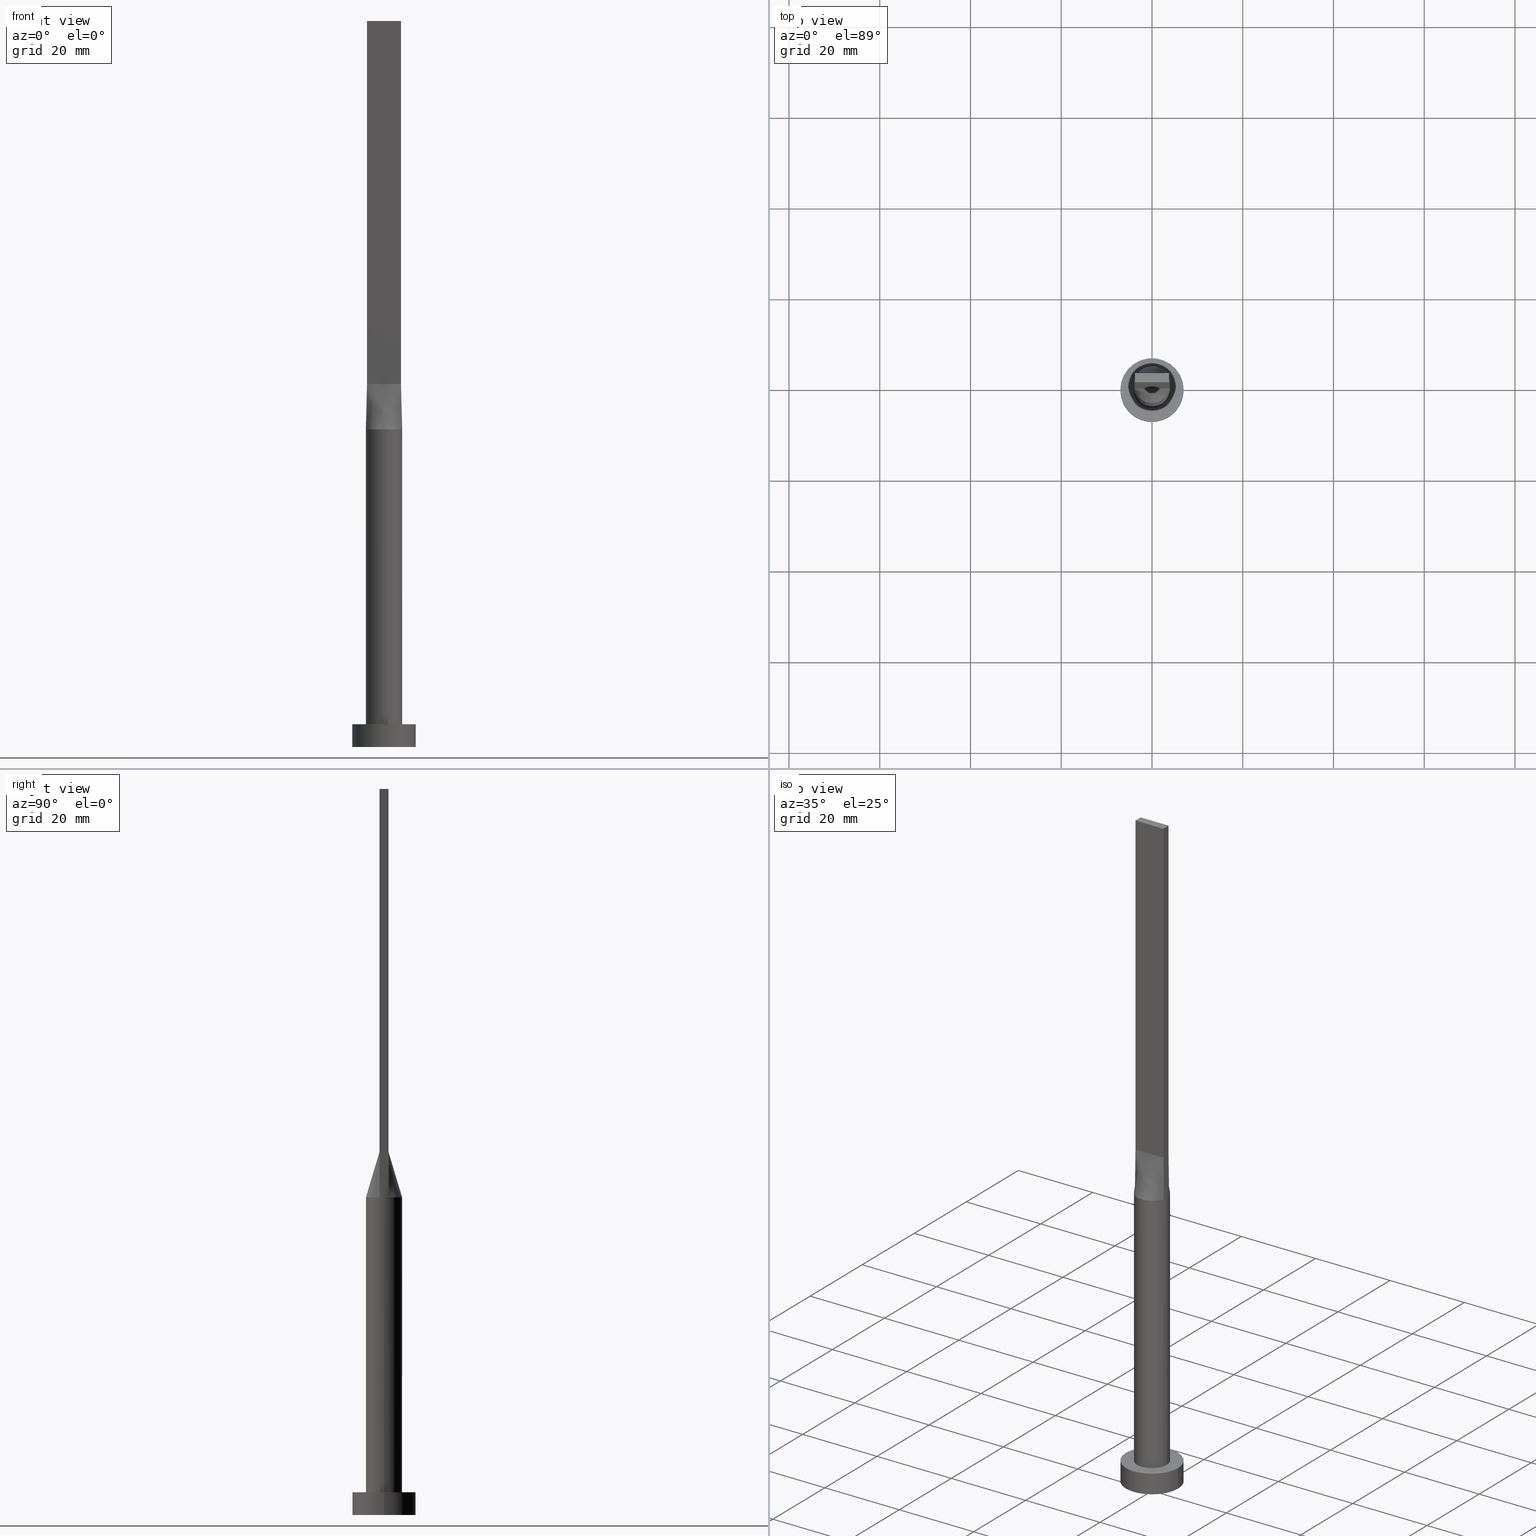
[diagram: canonical four-view strip — front | top / right | iso, engineering-drawing reading convention]
A machine part, canonical four-view strip (front | top / right | iso — engineering-drawing reading convention). The complete STEP part file that produces these views, byte-faithful:
ISO-10303-21;
HEADER;
FILE_DESCRIPTION (( 'STEP AP203' ),
    '1' );
FILE_NAME ('753e.STEP',
    '2023-02-13T09:54:30',
    ( '' ),
    ( '' ),
    'SwSTEP 2.0',
    'SolidWorks 2019',
    '' );
FILE_SCHEMA (( 'CONFIG_CONTROL_DESIGN' ));
ENDSEC;

DATA;
#1 = ORIENTED_EDGE ( 'NONE', *, *, #468, .F. ) ;
#2 = CIRCLE ( 'NONE', #260, 4.000000000000000000 ) ;
#3 = DIRECTION ( 'NONE',  ( 1.000000000000000000, 0.000000000000000000, 0.000000000000000000 ) ) ;
#4 = PERSON_AND_ORGANIZATION_ROLE ( 'creator' ) ;
#5 = ORIENTED_EDGE ( 'NONE', *, *, #581, .F. ) ;
#6 = CARTESIAN_POINT ( 'NONE',  ( 0.6249999999999806821, -0.9999999999999995559, 79.99999999999998579 ) ) ;
#7 = DATE_AND_TIME ( #463, #479 ) ;
#8 = ADVANCED_FACE ( 'NONE', ( #510 ), #55, .T. ) ;
#9 = CARTESIAN_POINT ( 'NONE',  ( 3.864939758404985160, 1.030650602241328873, 70.00000000000000000 ) ) ;
#10 = CARTESIAN_POINT ( 'NONE',  ( -3.009488128496037529, 2.672487015486668671, 69.99999999999998579 ) ) ;
#11 = PERSON_AND_ORGANIZATION ( #225, #543 ) ;
#12 = FACE_OUTER_BOUND ( 'NONE', #531, .T. ) ;
#13 = AXIS2_PLACEMENT_3D ( 'NONE', #168, #372, #253 ) ;
#14 = DIRECTION ( 'NONE',  ( -1.000000000000000000, 0.000000000000000000, 0.000000000000000000 ) ) ;
#15 = CARTESIAN_POINT ( 'NONE',  ( 0.000000000000000000, 0.000000000000000000, 5.000000000000000000 ) ) ;
#16 = EDGE_CURVE ( 'NONE', #350, #579, #146, .T. ) ;
#17 = DIRECTION ( 'NONE',  ( -0.01149316269309396538, -0.003064843384824995909, 0.9999292544707033548 ) ) ;
#18 = CARTESIAN_POINT ( 'NONE',  ( -3.750000000000000000, 1.000000000000000000, 80.00000000000000000 ) ) ;
#19 = CARTESIAN_POINT ( 'NONE',  ( -3.865236553917747120, 1.030730781768519622, 70.00000000000000000 ) ) ;
#20 = CARTESIAN_POINT ( 'NONE',  ( 0.000000000000000000, 0.000000000000000000, 0.000000000000000000 ) ) ;
#21 = CARTESIAN_POINT ( 'NONE',  ( 3.750000000000000000, 1.000000000000000000, 160.0000000000000000 ) ) ;
#22 = PRODUCT_DEFINITION_FORMATION_WITH_SPECIFIED_SOURCE ( 'LIBOVOLN�', '', #328, .NOT_KNOWN. ) ;
#23 = DIRECTION ( 'NONE',  ( 1.000000000000000000, 0.000000000000000000, 0.000000000000000000 ) ) ;
#24 = CARTESIAN_POINT ( 'NONE',  ( -2.187500000000000444, 1.000000000000000000, 79.99999999999998579 ) ) ;
#25 = VERTEX_POINT ( 'NONE', #521 ) ;
#26 = CARTESIAN_POINT ( 'NONE',  ( -3.953459813730019423, 0.6987003947724497177, 70.00000000000001421 ) ) ;
#27 = CARTESIAN_POINT ( 'NONE',  ( 3.124999999999999112, 1.000000000000000000, 79.99999999999998579 ) ) ;
#28 = ORIENTED_EDGE ( 'NONE', *, *, #254, .F. ) ;
#29 = CARTESIAN_POINT ( 'NONE',  ( 3.865212754195084699, 1.030724393897464841, 70.00000000000000000 ) ) ;
#30 = APPROVAL_DATE_TIME ( #485, #35 ) ;
#31 = CARTESIAN_POINT ( 'NONE',  ( 3.750000000000000000, -0.9999999999999997780, 160.0000000000000000 ) ) ;
#32 = CARTESIAN_POINT ( 'NONE',  ( -3.750000000000000000, -0.9999999999999991118, 160.0000000000000000 ) ) ;
#33 = DIRECTION ( 'NONE',  ( -1.000000000000000000, 0.000000000000000000, 0.000000000000000000 ) ) ;
#34 = DIRECTION ( 'NONE',  ( 0.000000000000000000, 1.000000000000000000, 0.000000000000000000 ) ) ;
#35 = APPROVAL ( #294, 'NEUR�EN�' ) ;
#36 = CARTESIAN_POINT ( 'NONE',  ( 2.187499999999999556, 1.000000000000000000, 79.99999999999998579 ) ) ;
#37 = ORIENTED_EDGE ( 'NONE', *, *, #317, .F. ) ;
#38 = CARTESIAN_POINT ( 'NONE',  ( 0.5121855420560009753, 4.000000000000000888, 70.00000000000000000 ) ) ;
#39 = ORIENTED_EDGE ( 'NONE', *, *, #181, .T. ) ;
#40 = EDGE_LOOP ( 'NONE', ( #90, #205, #352, #378 ) ) ;
#41 = CARTESIAN_POINT ( 'NONE',  ( -2.500000000000011102, -0.9999999999999991118, 79.99999999999998579 ) ) ;
#42 = AXIS2_PLACEMENT_3D ( 'NONE', #284, #147, #14 ) ;
#43 = EDGE_LOOP ( 'NONE', ( #163, #540, #541, #261, #223, #84 ) ) ;
#44 = CARTESIAN_POINT ( 'NONE',  ( 2.499999999999988898, -0.9999999999999995559, 79.99999999999998579 ) ) ;
#45 = ADVANCED_FACE ( 'NONE', ( #12 ), #286, .F. ) ;
#46 = EDGE_LOOP ( 'NONE', ( #306, #460, #122, #81, #1 ) ) ;
#47 = DIRECTION ( 'NONE',  ( 0.000000000000000000, 0.000000000000000000, 1.000000000000000000 ) ) ;
#48 = APPROVAL_STATUS ( 'not_yet_approved' ) ;
#49 = VERTEX_POINT ( 'NONE', #334 ) ;
#50 = CIRCLE ( 'NONE', #13, 4.000000000000000000 ) ;
#51 = ADVANCED_FACE ( 'NONE', ( #326 ), #57, .T. ) ;
#52 = CARTESIAN_POINT ( 'NONE',  ( 3.999999999999999112, 0.3494497975066819251, 69.99999999999998579 ) ) ;
#53 = APPROVAL_ROLE ( '' ) ;
#54 = CARTESIAN_POINT ( 'NONE',  ( -3.750000000000000000, -0.9999999999999991118, 80.00000000000000000 ) ) ;
#55 = CYLINDRICAL_SURFACE ( 'NONE', #98, 7.000000000000000000 ) ;
#56 = CARTESIAN_POINT ( 'NONE',  ( 3.267840578657193795, 2.338604872288698289, 70.00000000000000000 ) ) ;
#57 = PLANE ( 'NONE',  #321 ) ;
#58 = EDGE_CURVE ( 'NONE', #402, #133, #516, .T. ) ;
#59 = DIRECTION ( 'NONE',  ( -0.000000000000000000, -0.000000000000000000, -1.000000000000000000 ) ) ;
#60 = CARTESIAN_POINT ( 'NONE',  ( 3.865212754195084699, 1.030724393897464841, 70.00000000000000000 ) ) ;
#61 = CARTESIAN_POINT ( 'NONE',  ( 0.000000000000000000, 0.000000000000000000, 160.0000000000000000 ) ) ;
#62 = CARTESIAN_POINT ( 'NONE',  ( -3.953459813730020311, -0.6987003947724488295, 70.00000000000000000 ) ) ;
#63 = CARTESIAN_POINT ( 'NONE',  ( 0.000000000000000000, 0.000000000000000000, 5.000000000000000000 ) ) ;
#64 = CARTESIAN_POINT ( 'NONE',  ( -3.865220763612065902, -1.030726602927787949, 70.00000000000000000 ) ) ;
#65 = SECURITY_CLASSIFICATION ( '', '', #128 ) ;
#66 = EDGE_CURVE ( 'NONE', #312, #504, #511, .T. ) ;
#67 = CARTESIAN_POINT ( 'NONE',  ( -1.023074425454088221, 3.898373771260455811, 70.00000000000001421 ) ) ;
#68 = APPROVAL_DATE_TIME ( #7, #271 ) ;
#69 = CARTESIAN_POINT ( 'NONE',  ( 2.499999999999999112, 1.000000000000000000, 79.99999999999998579 ) ) ;
#70 = ORIENTED_EDGE ( 'NONE', *, *, #538, .F. ) ;
#71 = CARTESIAN_POINT ( 'NONE',  ( -3.437500000000003109, -0.9999999999999991118, 79.99999999999998579 ) ) ;
#72 =( NAMED_UNIT ( * ) SI_UNIT ( $, .STERADIAN. ) SOLID_ANGLE_UNIT ( ) );
#73 = CARTESIAN_POINT ( 'NONE',  ( 1.249999999999999556, 1.000000000000000000, 79.99999999999998579 ) ) ;
#74 = DIRECTION ( 'NONE',  ( 0.000000000000000000, 0.000000000000000000, 1.000000000000000000 ) ) ;
#75 = CC_DESIGN_PERSON_AND_ORGANIZATION_ASSIGNMENT ( #323, #82, ( #328 ) ) ;
#76 = FACE_OUTER_BOUND ( 'NONE', #400, .T. ) ;
#77 = CARTESIAN_POINT ( 'NONE',  ( 3.267840578657193795, 2.338604872288698289, 70.00000000000000000 ) ) ;
#78 = PLANE ( 'NONE',  #412 ) ;
#79 = CARTESIAN_POINT ( 'NONE',  ( -4.000000000000000000, 0.000000000000000000, 70.00000000000000000 ) ) ;
#80 = ORIENTED_EDGE ( 'NONE', *, *, #548, .F. ) ;
#81 = ORIENTED_EDGE ( 'NONE', *, *, #192, .F. ) ;
#82 = PERSON_AND_ORGANIZATION_ROLE ( 'design_owner' ) ;
#83 = EDGE_CURVE ( 'NONE', #246, #402, #368, .T. ) ;
#84 = ORIENTED_EDGE ( 'NONE', *, *, #405, .F. ) ;
#85 = CARTESIAN_POINT ( 'NONE',  ( 1.562499999999983569, -0.9999999999999995559, 79.99999999999998579 ) ) ;
#86 = AXIS2_PLACEMENT_3D ( 'NONE', #251, #563, #389 ) ;
#87 = FACE_OUTER_BOUND ( 'NONE', #263, .T. ) ;
#88 = AXIS2_PLACEMENT_3D ( 'NONE', #525, #161, #340 ) ;
#89 = VERTEX_POINT ( 'NONE', #365 ) ;
#90 = ORIENTED_EDGE ( 'NONE', *, *, #264, .T. ) ;
#91 = CARTESIAN_POINT ( 'NONE',  ( -1.940702937457744692, -3.532374760555929250, 70.00000000000000000 ) ) ;
#92 = EDGE_CURVE ( 'NONE', #491, #133, #149, .T. ) ;
#93 = CALENDAR_DATE ( 2023, 13, 2 ) ;
#94 = VERTEX_POINT ( 'NONE', #195 ) ;
#95 = UNCERTAINTY_MEASURE_WITH_UNIT (LENGTH_MEASURE( 1.000000000000000082E-05 ), #170, 'distance_accuracy_value', 'NONE');
#96 = CARTESIAN_POINT ( 'NONE',  ( 3.749999999999999556, 0.3333333333333339810, 79.99999999999998579 ) ) ;
#97 = CARTESIAN_POINT ( 'NONE',  ( 1.023074425454087999, 3.898373771260456255, 69.99999999999998579 ) ) ;
#98 = AXIS2_PLACEMENT_3D ( 'NONE', #15, #280, #551 ) ;
#99 = CARTESIAN_POINT ( 'NONE',  ( -3.750000000000000000, 1.000000000000000000, 160.0000000000000000 ) ) ;
#100 = CARTESIAN_POINT ( 'NONE',  ( 3.750000000000000000, 1.000000000000000000, 80.00000000000000000 ) ) ;
#101 = PLANE ( 'NONE',  #492 ) ;
#102 = DIRECTION ( 'NONE',  ( 1.000000000000000000, -8.673617379884035472E-17, 0.000000000000000000 ) ) ;
#103 = FACE_OUTER_BOUND ( 'NONE', #136, .T. ) ;
#104 = DIRECTION ( 'NONE',  ( -0.01149316269309400701, 0.003064843384825017159, 0.9999292544707033548 ) ) ;
#105 = CALENDAR_DATE ( 2023, 13, 2 ) ;
#106 = ADVANCED_FACE ( 'NONE', ( #532 ), #131, .T. ) ;
#107 = LOCAL_TIME ( 10, 54, 30.00000000000000000, #186 ) ;
#108 = CARTESIAN_POINT ( 'NONE',  ( -1.023074425454088221, 3.898373771260455811, 70.00000000000001421 ) ) ;
#109 = PERSON_AND_ORGANIZATION_ROLE ( 'creator' ) ;
#110 = DIRECTION ( 'NONE',  ( 0.000000000000000000, 0.000000000000000000, 1.000000000000000000 ) ) ;
#111 = CARTESIAN_POINT ( 'NONE',  ( -3.999999999999999112, -0.3494497975066816475, 69.99999999999998579 ) ) ;
#112 = FACE_OUTER_BOUND ( 'NONE', #43, .T. ) ;
#113 = CARTESIAN_POINT ( 'NONE',  ( 3.750000000000000000, 1.000000000000000000, 80.00000000000000000 ) ) ;
#114 = CARTESIAN_POINT ( 'NONE',  ( -3.864939758404985604, -1.030650602241328428, 70.00000000000000000 ) ) ;
#115 = EDGE_CURVE ( 'NONE', #231, #504, #345, .T. ) ;
#116 = CARTESIAN_POINT ( 'NONE',  ( -3.864939758404985604, 1.030650602241328428, 70.00000000000000000 ) ) ;
#117 = AXIS2_PLACEMENT_3D ( 'NONE', #570, #523, #427 ) ;
#118 = PERSON_AND_ORGANIZATION_ROLE ( 'classification_officer' ) ;
#119 = EDGE_LOOP ( 'NONE', ( #501, #176, #299, #220 ) ) ;
#120 = DIRECTION ( 'NONE',  ( -0.000000000000000000, -0.000000000000000000, -1.000000000000000000 ) ) ;
#121 = DIRECTION ( 'NONE',  ( 0.000000000000000000, 0.000000000000000000, 1.000000000000000000 ) ) ;
#122 = ORIENTED_EDGE ( 'NONE', *, *, #564, .F. ) ;
#123 = CARTESIAN_POINT ( 'NONE',  ( 7.000000000000000000, 8.572527594031473190E-16, 0.000000000000000000 ) ) ;
#124 = DIRECTION ( 'NONE',  ( 1.000000000000000000, -8.673617379884035472E-17, 0.000000000000000000 ) ) ;
#125 = CARTESIAN_POINT ( 'NONE',  ( -1.250000000000000444, 1.000000000000000000, 79.99999999999998579 ) ) ;
#126 = AXIS2_PLACEMENT_3D ( 'NONE', #488, #74, #272 ) ;
#127 = ORIENTED_EDGE ( 'NONE', *, *, #92, .T. ) ;
#128 = SECURITY_CLASSIFICATION_LEVEL ( 'unclassified' ) ;
#129 = ORIENTED_EDGE ( 'NONE', *, *, #317, .T. ) ;
#130 = ORIENTED_EDGE ( 'NONE', *, *, #487, .F. ) ;
#131 = CYLINDRICAL_SURFACE ( 'NONE', #222, 7.000000000000000000 ) ;
#132 = DIRECTION ( 'NONE',  ( 1.000000000000000000, 0.000000000000000000, 0.000000000000000000 ) ) ;
#133 = VERTEX_POINT ( 'NONE', #100 ) ;
#134 = CARTESIAN_POINT ( 'NONE',  ( 1.940702937457743360, -3.532374760555930582, 69.99999999999998579 ) ) ;
#135 = VECTOR ( 'NONE', #466, 1000.000000000000000 ) ;
#136 = EDGE_LOOP ( 'NONE', ( #266, #508, #182, #314 ) ) ;
#137 = CARTESIAN_POINT ( 'NONE',  ( -3.267840578657194239, -2.338604872288696956, 70.00000000000000000 ) ) ;
#138 = CC_DESIGN_DATE_AND_TIME_ASSIGNMENT ( #276, #238, ( #554 ) ) ;
#139 = APPROVAL_DATE_TIME ( #236, #371 ) ;
#140 = ORIENTED_EDGE ( 'NONE', *, *, #58, .F. ) ;
#141 = CARTESIAN_POINT ( 'NONE',  ( 3.750000000000000000, -1.000000000000000000, 80.00000000000000000 ) ) ;
#142 = DESIGN_CONTEXT ( 'detailed design', #456, 'design' ) ;
#143 = AXIS2_PLACEMENT_3D ( 'NONE', #357, #546, #462 ) ;
#144 = DIRECTION ( 'NONE',  ( -1.000000000000000000, 0.000000000000000000, 0.000000000000000000 ) ) ;
#145 = VECTOR ( 'NONE', #102, 1000.000000000000000 ) ;
#146 = LINE ( 'NONE', #99, #279 ) ;
#147 = DIRECTION ( 'NONE',  ( -0.000000000000000000, -0.000000000000000000, -1.000000000000000000 ) ) ;
#148 = PRODUCT_RELATED_PRODUCT_CATEGORY ( 'detail', '', ( #328 ) ) ;
#149 = LINE ( 'NONE', #418, #162 ) ;
#150 = CARTESIAN_POINT ( 'NONE',  ( -0.5121855420560009753, 4.000000000000000888, 69.99999999999998579 ) ) ;
#151 = DIRECTION ( 'NONE',  ( 1.000000000000000000, 0.000000000000000000, -0.000000000000000000 ) ) ;
#152 = CC_DESIGN_APPROVAL ( #271, ( #22 ) ) ;
#153 = LINE ( 'NONE', #514, #135 ) ;
#154 = AXIS2_PLACEMENT_3D ( 'NONE', #557, #198, #519 ) ;
#155 = ORIENTED_EDGE ( 'NONE', *, *, #192, .T. ) ;
#156 = CARTESIAN_POINT ( 'NONE',  ( 3.864939758404985604, -1.030650602241328873, 70.00000000000000000 ) ) ;
#157 = ADVANCED_FACE ( 'NONE', ( #87 ), #430, .T. ) ;
#158 = CARTESIAN_POINT ( 'NONE',  ( -3.749999999999999556, -0.6666666666666657415, 79.99999999999998579 ) ) ;
#159 = DIRECTION ( 'NONE',  ( 1.000000000000000000, -6.217248937900876626E-15, 0.000000000000000000 ) ) ;
#160 = CARTESIAN_POINT ( 'NONE',  ( -3.781952206537765537, 1.341853921743403788, 70.00000000000001421 ) ) ;
#161 = DIRECTION ( 'NONE',  ( 0.000000000000000000, 0.000000000000000000, 1.000000000000000000 ) ) ;
#162 = VECTOR ( 'NONE', #17, 1000.000000000000114 ) ;
#163 = ORIENTED_EDGE ( 'NONE', *, *, #174, .F. ) ;
#164 = CARTESIAN_POINT ( 'NONE',  ( -3.750000000000000000, 1.000000000000000000, 80.00000000000000000 ) ) ;
#165 = EDGE_CURVE ( 'NONE', #268, #402, #465, .T. ) ;
#166 = CARTESIAN_POINT ( 'NONE',  ( 3.864939758404985160, 1.030650602241329539, 70.00000000000000000 ) ) ;
#167 = CARTESIAN_POINT ( 'NONE',  ( -3.125000000000005773, -0.9999999999999991118, 79.99999999999998579 ) ) ;
#168 = CARTESIAN_POINT ( 'NONE',  ( 0.000000000000000000, 0.000000000000000000, 70.00000000000000000 ) ) ;
#169 = CARTESIAN_POINT ( 'NONE',  ( -0.5121855420560009753, 4.000000000000000888, 69.99999999999998579 ) ) ;
#170 =( LENGTH_UNIT ( ) NAMED_UNIT ( * ) SI_UNIT ( .MILLI., .METRE. ) );
#171 = CARTESIAN_POINT ( 'NONE',  ( -3.750000000000000000, 1.000000000000000000, 160.0000000000000000 ) ) ;
#172 = ORIENTED_EDGE ( 'NONE', *, *, #165, .F. ) ;
#173 = MECHANICAL_CONTEXT ( 'NONE', #354, 'mechanical' ) ;
#174 = EDGE_CURVE ( 'NONE', #547, #491, #342, .T. ) ;
#175 = CALENDAR_DATE ( 2023, 13, 2 ) ;
#176 = ORIENTED_EDGE ( 'NONE', *, *, #476, .F. ) ;
#177 = CARTESIAN_POINT ( 'NONE',  ( -1.250000000000017764, -0.9999999999999993339, 79.99999999999998579 ) ) ;
#178 = ORIENTED_EDGE ( 'NONE', *, *, #217, .T. ) ;
#179 = CARTESIAN_POINT ( 'NONE',  ( -1.562500000000016653, -0.9999999999999993339, 79.99999999999998579 ) ) ;
#180 = CARTESIAN_POINT ( 'NONE',  ( 3.953459813730019423, -0.6987003947724502728, 70.00000000000001421 ) ) ;
#181 = EDGE_CURVE ( 'NONE', #562, #89, #517, .T. ) ;
#182 = ORIENTED_EDGE ( 'NONE', *, *, #351, .F. ) ;
#183 = CARTESIAN_POINT ( 'NONE',  ( -2.187500000000013323, -0.9999999999999993339, 79.99999999999998579 ) ) ;
#184 = CIRCLE ( 'NONE', #518, 7.000000000000000000 ) ;
#185 = VECTOR ( 'NONE', #240, 1000.000000000000000 ) ;
#186 = COORDINATED_UNIVERSAL_TIME_OFFSET ( 1, 0, .AHEAD. ) ;
#187 = EDGE_LOOP ( 'NONE', ( #315, #406, #451, #341 ) ) ;
#188 = CARTESIAN_POINT ( 'NONE',  ( 1.249999999999982236, -0.9999999999999995559, 79.99999999999998579 ) ) ;
#189 = CYLINDRICAL_SURFACE ( 'NONE', #42, 4.000000000000000000 ) ;
#190 = DIRECTION ( 'NONE',  ( 0.000000000000000000, 0.000000000000000000, 1.000000000000000000 ) ) ;
#191 = VECTOR ( 'NONE', #441, 1000.000000000000000 ) ;
#192 = EDGE_CURVE ( 'NONE', #579, #246, #325, .T. ) ;
#193 = FACE_OUTER_BOUND ( 'NONE', #347, .T. ) ;
#194 = VECTOR ( 'NONE', #59, 1000.000000000000000 ) ;
#195 = CARTESIAN_POINT ( 'NONE',  ( 7.000000000000000000, 8.572527594031473190E-16, 5.000000000000000000 ) ) ;
#196 = CARTESIAN_POINT ( 'NONE',  ( 3.750000000000000000, -0.9999999999999997780, 80.00000000000000000 ) ) ;
#197 = FACE_OUTER_BOUND ( 'NONE', #119, .T. ) ;
#198 = DIRECTION ( 'NONE',  ( 0.000000000000000000, 0.000000000000000000, 1.000000000000000000 ) ) ;
#199 = ADVANCED_FACE ( 'NONE', ( #422 ), #474, .T. ) ;
#200 = APPROVAL_PERSON_ORGANIZATION ( #459, #371, #53 ) ;
#201 = LINE ( 'NONE', #248, #450 ) ;
#202 = DIRECTION ( 'NONE',  ( -0.000000000000000000, -0.000000000000000000, -1.000000000000000000 ) ) ;
#203 = CARTESIAN_POINT ( 'NONE',  ( -4.000000000000000000, 0.000000000000000000, 5.000000000000000000 ) ) ;
#204 = VERTEX_POINT ( 'NONE', #569 ) ;
#205 = ORIENTED_EDGE ( 'NONE', *, *, #292, .T. ) ;
#206 = ADVANCED_FACE ( 'NONE', ( #445 ), #483, .T. ) ;
#207 = MANIFOLD_SOLID_BREP ( 'P�idat vysunut�m5', #438 ) ;
#208 =( GEOMETRIC_REPRESENTATION_CONTEXT ( 3 ) GLOBAL_UNCERTAINTY_ASSIGNED_CONTEXT ( ( #95 ) ) GLOBAL_UNIT_ASSIGNED_CONTEXT ( ( #170, #482, #72 ) ) REPRESENTATION_CONTEXT ( 'NONE', 'WORKASPACE' ) );
#209 = APPROVAL_ROLE ( '' ) ;
#210 = VECTOR ( 'NONE', #202, 1000.000000000000000 ) ;
#211 = CARTESIAN_POINT ( 'NONE',  ( -3.807469879202492802, 1.015325301120663992, 75.00000000000001421 ) ) ;
#212 = CALENDAR_DATE ( 2023, 13, 2 ) ;
#213 = CARTESIAN_POINT ( 'NONE',  ( 0.6249999999999994449, 1.000000000000000000, 79.99999999999998579 ) ) ;
#214 = ORIENTED_EDGE ( 'NONE', *, *, #447, .F. ) ;
#215 = PERSON_AND_ORGANIZATION_ROLE ( 'design_supplier' ) ;
#216 = CARTESIAN_POINT ( 'NONE',  ( -3.009488128496037529, 2.672487015486668671, 69.99999999999998579 ) ) ;
#217 = EDGE_CURVE ( 'NONE', #539, #89, #415, .T. ) ;
#218 = ORIENTED_EDGE ( 'NONE', *, *, #174, .T. ) ;
#219 = LINE ( 'NONE', #394, #461 ) ;
#220 = ORIENTED_EDGE ( 'NONE', *, *, #165, .T. ) ;
#221 = CARTESIAN_POINT ( 'NONE',  ( -3.009488128496037529, -2.672487015486668227, 70.00000000000000000 ) ) ;
#222 = AXIS2_PLACEMENT_3D ( 'NONE', #63, #120, #33 ) ;
#223 = ORIENTED_EDGE ( 'NONE', *, *, #301, .F. ) ;
#224 = CARTESIAN_POINT ( 'NONE',  ( 3.653499896451230633, -1.673258289339059068, 70.00000000000001421 ) ) ;
#225 = PERSON ( 'NEUR�EN�', 'NEUR�EN�', 'NEUR�EN�', ('NEUR�EN�'), ('NEUR�EN�'), ('NEUR�EN�') ) ;
#226 = DIRECTION ( 'NONE',  ( 1.000000000000000000, 0.000000000000000000, -0.000000000000000000 ) ) ;
#227 = ORIENTED_EDGE ( 'NONE', *, *, #16, .T. ) ;
#228 = CARTESIAN_POINT ( 'NONE',  ( -1.023074425454088887, -3.898373771260456255, 69.99999999999998579 ) ) ;
#229 = CARTESIAN_POINT ( 'NONE',  ( 3.749999999999999556, -0.3333333333333326487, 79.99999999999998579 ) ) ;
#230 = CARTESIAN_POINT ( 'NONE',  ( 0.000000000000000000, 0.000000000000000000, 70.00000000000000000 ) ) ;
#231 = VERTEX_POINT ( 'NONE', #522 ) ;
#232 = CARTESIAN_POINT ( 'NONE',  ( -0.6250000000000193179, -0.9999999999999993339, 79.99999999999998579 ) ) ;
#233 = LOCAL_TIME ( 10, 54, 30.00000000000000000, #393 ) ;
#234 = VECTOR ( 'NONE', #453, 1000.000000000000000 ) ;
#235 = CARTESIAN_POINT ( 'NONE',  ( -3.750000000000000000, 1.000000000000000000, 160.0000000000000000 ) ) ;
#236 = DATE_AND_TIME ( #105, #404 ) ;
#237 = ORIENTED_EDGE ( 'NONE', *, *, #292, .F. ) ;
#238 = DATE_TIME_ROLE ( 'creation_date' ) ;
#239 = CARTESIAN_POINT ( 'NONE',  ( 3.009488128496037085, 2.672487015486669115, 70.00000000000000000 ) ) ;
#240 = DIRECTION ( 'NONE',  ( -0.000000000000000000, 1.000000000000000000, -0.000000000000000000 ) ) ;
#241 = CC_DESIGN_DATE_AND_TIME_ASSIGNMENT ( #494, #348, ( #65 ) ) ;
#242 = CARTESIAN_POINT ( 'NONE',  ( 3.781952206537764205, 1.341853921743403788, 70.00000000000001421 ) ) ;
#243 = VECTOR ( 'NONE', #124, 1000.000000000000000 ) ;
#244 = DIRECTION ( 'NONE',  ( 0.01149316269309400701, -0.003064843384824952107, 0.9999292544707033548 ) ) ;
#245 = CARTESIAN_POINT ( 'NONE',  ( -2.346407003458401253, 3.270103945996944095, 70.00000000000001421 ) ) ;
#246 = VERTEX_POINT ( 'NONE', #54 ) ;
#247 = ADVANCED_FACE ( 'NONE', ( #103 ), #283, .T. ) ;
#248 = CARTESIAN_POINT ( 'NONE',  ( 3.750000000000000000, 1.000000000000000000, 160.0000000000000000 ) ) ;
#249 = CARTESIAN_POINT ( 'NONE',  ( 3.009488128496037085, 2.672487015486669115, 70.00000000000000000 ) ) ;
#250 = ORIENTED_EDGE ( 'NONE', *, *, #311, .F. ) ;
#251 = CARTESIAN_POINT ( 'NONE',  ( 0.000000000000000000, 0.000000000000000000, 70.00000000000000000 ) ) ;
#252 = DIRECTION ( 'NONE',  ( -0.000000000000000000, -0.000000000000000000, -1.000000000000000000 ) ) ;
#253 = DIRECTION ( 'NONE',  ( 1.000000000000000000, 0.000000000000000000, 0.000000000000000000 ) ) ;
#254 = EDGE_CURVE ( 'NONE', #562, #94, #414, .T. ) ;
#255 = LINE ( 'NONE', #571, #210 ) ;
#256 = DIRECTION ( 'NONE',  ( 0.000000000000000000, 0.000000000000000000, 1.000000000000000000 ) ) ;
#257 = ORIENTED_EDGE ( 'NONE', *, *, #529, .F. ) ;
#258 = APPLICATION_PROTOCOL_DEFINITION ( 'international standard', 'config_control_design', 1994, #456 ) ;
#259 = CARTESIAN_POINT ( 'NONE',  ( -3.781952206537765981, -1.341853921743402900, 70.00000000000001421 ) ) ;
#260 = AXIS2_PLACEMENT_3D ( 'NONE', #230, #399, #3 ) ;
#261 = ORIENTED_EDGE ( 'NONE', *, *, #115, .F. ) ;
#262 = CARTESIAN_POINT ( 'NONE',  ( 3.009488128496036641, -2.672487015486668671, 69.99999999999998579 ) ) ;
#263 = EDGE_LOOP ( 'NONE', ( #307, #218, #127, #140, #358 ) ) ;
#264 = EDGE_CURVE ( 'NONE', #464, #350, #435, .T. ) ;
#265 = CARTESIAN_POINT ( 'NONE',  ( 3.750000000000000000, -0.9999999999999997780, 160.0000000000000000 ) ) ;
#266 = ORIENTED_EDGE ( 'NONE', *, *, #405, .T. ) ;
#267 = APPROVAL_STATUS ( 'not_yet_approved' ) ;
#268 = VERTEX_POINT ( 'NONE', #31 ) ;
#269 = CC_DESIGN_APPROVAL ( #371, ( #554 ) ) ;
#270 = VECTOR ( 'NONE', #475, 1000.000000000000000 ) ;
#271 = APPROVAL ( #267, 'NEUR�EN�' ) ;
#272 = DIRECTION ( 'NONE',  ( 1.000000000000000000, 0.000000000000000000, 0.000000000000000000 ) ) ;
#273 = CARTESIAN_POINT ( 'NONE',  ( 3.781952206537765981, -1.341853921743404232, 70.00000000000001421 ) ) ;
#274 = CARTESIAN_POINT ( 'NONE',  ( 3.749999999999999556, 0.6666666666666670737, 79.99999999999998579 ) ) ;
#275 = DIRECTION ( 'NONE',  ( -1.000000000000000000, 0.000000000000000000, 0.000000000000000000 ) ) ;
#276 = DATE_AND_TIME ( #93, #107 ) ;
#277 = CC_DESIGN_SECURITY_CLASSIFICATION ( #65, ( #22 ) ) ;
#278 = ADVANCED_FACE ( 'NONE', ( #313, #309 ), #454, .T. ) ;
#279 = VECTOR ( 'NONE', #410, 1000.000000000000000 ) ;
#280 = DIRECTION ( 'NONE',  ( -0.000000000000000000, -0.000000000000000000, -1.000000000000000000 ) ) ;
#281 = DIRECTION ( 'NONE',  ( 1.000000000000000000, 0.000000000000000000, 0.000000000000000000 ) ) ;
#282 = CARTESIAN_POINT ( 'NONE',  ( -3.749999999999999556, -0.3333333333333324822, 79.99999999999998579 ) ) ;
#283 = B_SPLINE_SURFACE_WITH_KNOTS ( 'NONE', 3, 1, ( 
 ( #166, #298 ),
 ( #490, #495 ),
 ( #536, #27 ),
 ( #77, #69 ),
 ( #249, #36 ),
 ( #383, #443 ),
 ( #387, #73 ),
 ( #566, #213 ),
 ( #38, #481 ),
 ( #169, #346 ),
 ( #67, #524 ),
 ( #377, #125 ),
 ( #245, #432 ),
 ( #216, #24 ),
 ( #304, #343 ),
 ( #289, #373 ),
 ( #160, #390 ),
 ( #116, #561 ) ),
 .UNSPECIFIED., .F., .F., .F.,
 ( 4, 2, 2, 2, 2, 2, 2, 2, 4 ),
 ( 2, 2 ),
 ( 0.000000000000000000, 0.1250000000000000000, 0.2500000000000000000, 0.3750000000000000000, 0.5000000000000000000, 0.6250000000000000000, 0.7500000000000000000, 0.8750000000000000000, 1.000000000000000000 ),
 ( 0.000000000000000000, 1.000000000000000000 ),
 .UNSPECIFIED. ) ;
#284 = CARTESIAN_POINT ( 'NONE',  ( 0.000000000000000000, 0.000000000000000000, 70.00000000000000000 ) ) ;
#285 = PERSON_AND_ORGANIZATION ( #225, #543 ) ;
#286 = PLANE ( 'NONE',  #395 ) ;
#287 = CARTESIAN_POINT ( 'NONE',  ( -3.750000000000000000, 1.000000000000000000, 80.00000000000000000 ) ) ;
#288 = ADVANCED_BREP_SHAPE_REPRESENTATION ( '753e', ( #207, #126 ), #208 ) ;
#289 = CARTESIAN_POINT ( 'NONE',  ( -3.653499896451231521, 1.673258289339058180, 70.00000000000001421 ) ) ;
#290 = VECTOR ( 'NONE', #486, 1000.000000000000000 ) ;
#291 = VECTOR ( 'NONE', #252, 1000.000000000000000 ) ;
#292 = EDGE_CURVE ( 'NONE', #350, #25, #500, .T. ) ;
#293 = DIRECTION ( 'NONE',  ( -0.01149316269309400701, -0.003064843384825017159, -0.9999292544707033548 ) ) ;
#294 = APPROVAL_STATUS ( 'not_yet_approved' ) ;
#295 = ORIENTED_EDGE ( 'NONE', *, *, #66, .F. ) ;
#296 = CARTESIAN_POINT ( 'NONE',  ( -7.000000000000000000, 0.000000000000000000, 5.000000000000000000 ) ) ;
#297 = DIRECTION ( 'NONE',  ( 0.000000000000000000, 0.000000000000000000, 1.000000000000000000 ) ) ;
#298 = CARTESIAN_POINT ( 'NONE',  ( 3.750000000000000000, 1.000000000000000000, 80.00000000000000000 ) ) ;
#299 = ORIENTED_EDGE ( 'NONE', *, *, #424, .F. ) ;
#300 = DIRECTION ( 'NONE',  ( 0.000000000000000000, 0.000000000000000000, 1.000000000000000000 ) ) ;
#301 = EDGE_CURVE ( 'NONE', #204, #231, #2, .T. ) ;
#302 = DIRECTION ( 'NONE',  ( -0.000000000000000000, -0.000000000000000000, -1.000000000000000000 ) ) ;
#303 = AXIS2_PLACEMENT_3D ( 'NONE', #21, #335, #560 ) ;
#304 = CARTESIAN_POINT ( 'NONE',  ( -3.267840578657194239, 2.338604872288698289, 70.00000000000001421 ) ) ;
#305 = LINE ( 'NONE', #429, #575 ) ;
#306 = ORIENTED_EDGE ( 'NONE', *, *, #301, .T. ) ;
#307 = ORIENTED_EDGE ( 'NONE', *, *, #487, .T. ) ;
#308 = CARTESIAN_POINT ( 'NONE',  ( 0.5121855420560003092, -3.999999999999999112, 69.99999999999998579 ) ) ;
#309 = FACE_OUTER_BOUND ( 'NONE', #507, .T. ) ;
#310 = VECTOR ( 'NONE', #244, 1000.000000000000114 ) ;
#311 = EDGE_CURVE ( 'NONE', #504, #312, #556, .T. ) ;
#312 = VERTEX_POINT ( 'NONE', #401 ) ;
#313 = FACE_BOUND ( 'NONE', #440, .T. ) ;
#314 = ORIENTED_EDGE ( 'NONE', *, *, #92, .F. ) ;
#315 = ORIENTED_EDGE ( 'NONE', *, *, #505, .T. ) ;
#316 = CARTESIAN_POINT ( 'NONE',  ( 3.267840578657194239, -2.338604872288699177, 70.00000000000001421 ) ) ;
#317 = EDGE_CURVE ( 'NONE', #89, #539, #338, .T. ) ;
#318 = CARTESIAN_POINT ( 'NONE',  ( 3.749999999999999556, -0.6666666666666661856, 79.99999999999998579 ) ) ;
#319 = LINE ( 'NONE', #364, #549 ) ;
#320 = APPROVAL_PERSON_ORGANIZATION ( #11, #271, #467 ) ;
#321 = AXIS2_PLACEMENT_3D ( 'NONE', #61, #329, #324 ) ;
#322 = CARTESIAN_POINT ( 'NONE',  ( -3.653499896451231521, 1.673258289339058180, 70.00000000000001421 ) ) ;
#323 = PERSON_AND_ORGANIZATION ( #225, #543 ) ;
#324 = DIRECTION ( 'NONE',  ( 1.000000000000000000, 0.000000000000000000, -0.000000000000000000 ) ) ;
#325 = LINE ( 'NONE', #287, #270 ) ;
#326 = FACE_OUTER_BOUND ( 'NONE', #40, .T. ) ;
#327 = DIRECTION ( 'NONE',  ( -0.000000000000000000, -0.000000000000000000, -1.000000000000000000 ) ) ;
#328 = PRODUCT ( '753e', '753e', '', ( #173 ) ) ;
#329 = DIRECTION ( 'NONE',  ( 0.000000000000000000, 0.000000000000000000, 1.000000000000000000 ) ) ;
#330 = CARTESIAN_POINT ( 'NONE',  ( 0.000000000000000000, 0.000000000000000000, 0.000000000000000000 ) ) ;
#331 = CIRCLE ( 'NONE', #86, 4.000000000000000000 ) ;
#332 = CARTESIAN_POINT ( 'NONE',  ( -4.000000000000000000, 0.3494497975066826467, 69.99999999999998579 ) ) ;
#333 = AXIS2_PLACEMENT_3D ( 'NONE', #363, #403, #553 ) ;
#334 = CARTESIAN_POINT ( 'NONE',  ( 3.865244591400370577, -1.030732999276501527, 70.00000000000000000 ) ) ;
#335 = DIRECTION ( 'NONE',  ( 0.000000000000000000, -1.000000000000000000, 0.000000000000000000 ) ) ;
#336 = CC_DESIGN_PERSON_AND_ORGANIZATION_ASSIGNMENT ( #285, #215, ( #22 ) ) ;
#337 = CARTESIAN_POINT ( 'NONE',  ( 7.000000000000000000, 8.572527594031473190E-16, 5.000000000000000000 ) ) ;
#338 = CIRCLE ( 'NONE', #143, 7.000000000000000000 ) ;
#339 = LINE ( 'NONE', #386, #243 ) ;
#340 = DIRECTION ( 'NONE',  ( 1.000000000000000000, 0.000000000000000000, 0.000000000000000000 ) ) ;
#341 = ORIENTED_EDGE ( 'NONE', *, *, #564, .T. ) ;
#342 = CIRCLE ( 'NONE', #333, 4.000000000000000000 ) ;
#343 = CARTESIAN_POINT ( 'NONE',  ( -2.500000000000000444, 1.000000000000000000, 79.99999999999998579 ) ) ;
#344 = CC_DESIGN_PERSON_AND_ORGANIZATION_ASSIGNMENT ( #417, #109, ( #22 ) ) ;
#345 = LINE ( 'NONE', #79, #291 ) ;
#346 = CARTESIAN_POINT ( 'NONE',  ( -0.3125000000000004996, 1.000000000000000000, 79.99999999999998579 ) ) ;
#347 = EDGE_LOOP ( 'NONE', ( #577, #130, #433, #70, #533, #428 ) ) ;
#348 = DATE_TIME_ROLE ( 'classification_date' ) ;
#349 = CARTESIAN_POINT ( 'NONE',  ( 0.000000000000000000, 0.000000000000000000, 5.000000000000000000 ) ) ;
#350 = VERTEX_POINT ( 'NONE', #235 ) ;
#351 = EDGE_CURVE ( 'NONE', #133, #579, #219, .T. ) ;
#352 = ORIENTED_EDGE ( 'NONE', *, *, #447, .T. ) ;
#353 = CARTESIAN_POINT ( 'NONE',  ( -0.3125000000000197065, -0.9999999999999993339, 80.00000000000000000 ) ) ;
#354 = APPLICATION_CONTEXT ( 'configuration controlled 3d designs of mechanical parts and assemblies' ) ;
#355 = EDGE_LOOP ( 'NONE', ( #257, #28, #39, #129 ) ) ;
#356 = CARTESIAN_POINT ( 'NONE',  ( 2.346407003458400364, -3.270103945996944095, 70.00000000000001421 ) ) ;
#357 = CARTESIAN_POINT ( 'NONE',  ( 0.000000000000000000, 0.000000000000000000, 0.000000000000000000 ) ) ;
#358 = ORIENTED_EDGE ( 'NONE', *, *, #397, .F. ) ;
#359 = EDGE_CURVE ( 'NONE', #547, #312, #153, .T. ) ;
#360 = CARTESIAN_POINT ( 'NONE',  ( 0.000000000000000000, 0.000000000000000000, 70.00000000000000000 ) ) ;
#361 = CARTESIAN_POINT ( 'NONE',  ( 0.5121855420560009753, 4.000000000000000888, 70.00000000000000000 ) ) ;
#362 = AXIS2_PLACEMENT_3D ( 'NONE', #360, #327, #144 ) ;
#363 = CARTESIAN_POINT ( 'NONE',  ( 0.000000000000000000, 0.000000000000000000, 70.00000000000000000 ) ) ;
#364 = CARTESIAN_POINT ( 'NONE',  ( 3.807469879202492802, -1.015325301120664214, 75.00000000000001421 ) ) ;
#365 = CARTESIAN_POINT ( 'NONE',  ( -7.000000000000000000, 0.000000000000000000, 0.000000000000000000 ) ) ;
#366 = CARTESIAN_POINT ( 'NONE',  ( -2.346407003458401253, 3.270103945996944095, 70.00000000000001421 ) ) ;
#367 = ADVANCED_FACE ( 'NONE', ( #112 ), #189, .T. ) ;
#368 = LINE ( 'NONE', #513, #145 ) ;
#369 = VECTOR ( 'NONE', #34, 1000.000000000000000 ) ;
#370 = ORIENTED_EDGE ( 'NONE', *, *, #264, .F. ) ;
#371 = APPROVAL ( #48, 'NEUR�EN�' ) ;
#372 = DIRECTION ( 'NONE',  ( 0.000000000000000000, 0.000000000000000000, 1.000000000000000000 ) ) ;
#373 = CARTESIAN_POINT ( 'NONE',  ( -3.125000000000000000, 1.000000000000000000, 79.99999999999998579 ) ) ;
#374 = ORIENTED_EDGE ( 'NONE', *, *, #217, .F. ) ;
#375 = CARTESIAN_POINT ( 'NONE',  ( 4.000000000000000000, -1.256865613583667397E-17, 70.00000000000000000 ) ) ;
#376 = CARTESIAN_POINT ( 'NONE',  ( -3.749999999999999556, 0.6666666666666669627, 79.99999999999998579 ) ) ;
#377 = CARTESIAN_POINT ( 'NONE',  ( -1.940702937457743138, 3.532374760555930582, 69.99999999999998579 ) ) ;
#378 = ORIENTED_EDGE ( 'NONE', *, *, #424, .T. ) ;
#379 = LOCAL_TIME ( 10, 54, 30.00000000000000000, #439 ) ;
#380 = PLANE ( 'NONE',  #117 ) ;
#381 = ADVANCED_FACE ( 'NONE', ( #193 ), #477, .T. ) ;
#382 = SHAPE_DEFINITION_REPRESENTATION ( #565, #288 ) ;
#383 = CARTESIAN_POINT ( 'NONE',  ( 2.346407003458400808, 3.270103945996944983, 69.99999999999998579 ) ) ;
#384 = AXIS2_PLACEMENT_3D ( 'NONE', #330, #110, #281 ) ;
#385 = DIRECTION ( 'NONE',  ( -1.000000000000000000, 8.673617379884035472E-17, 0.000000000000000000 ) ) ;
#386 = CARTESIAN_POINT ( 'NONE',  ( -3.750000000000000000, -0.9999999999999991118, 160.0000000000000000 ) ) ;
#387 = CARTESIAN_POINT ( 'NONE',  ( 1.940702937457743582, 3.532374760555930582, 70.00000000000000000 ) ) ;
#388 = ORIENTED_EDGE ( 'NONE', *, *, #181, .F. ) ;
#389 = DIRECTION ( 'NONE',  ( 1.000000000000000000, 0.000000000000000000, 0.000000000000000000 ) ) ;
#390 = CARTESIAN_POINT ( 'NONE',  ( -3.437500000000000000, 1.000000000000000000, 79.99999999999998579 ) ) ;
#391 = ORIENTED_EDGE ( 'NONE', *, *, #254, .T. ) ;
#392 = APPROVAL_PERSON_ORGANIZATION ( #499, #35, #209 ) ;
#393 = COORDINATED_UNIVERSAL_TIME_OFFSET ( 1, 0, .AHEAD. ) ;
#394 = CARTESIAN_POINT ( 'NONE',  ( -3.750000000000000000, 1.000000000000000000, 80.00000000000000000 ) ) ;
#395 = AXIS2_PLACEMENT_3D ( 'NONE', #20, #190, #151 ) ;
#396 = EDGE_LOOP ( 'NONE', ( #496, #498, #370, #421 ) ) ;
#397 = EDGE_CURVE ( 'NONE', #49, #402, #319, .T. ) ;
#398 = PERSON_AND_ORGANIZATION ( #225, #543 ) ;
#399 = DIRECTION ( 'NONE',  ( 0.000000000000000000, 0.000000000000000000, 1.000000000000000000 ) ) ;
#400 = EDGE_LOOP ( 'NONE', ( #155, #80, #237, #227 ) ) ;
#401 = CARTESIAN_POINT ( 'NONE',  ( 4.000000000000000000, 4.898587196589412829E-16, 5.000000000000000000 ) ) ;
#402 = VERTEX_POINT ( 'NONE', #509 ) ;
#403 = DIRECTION ( 'NONE',  ( 0.000000000000000000, 0.000000000000000000, 1.000000000000000000 ) ) ;
#404 = LOCAL_TIME ( 10, 54, 30.00000000000000000, #515 ) ;
#405 = EDGE_CURVE ( 'NONE', #491, #204, #558, .T. ) ;
#406 = ORIENTED_EDGE ( 'NONE', *, *, #397, .T. ) ;
#407 = CARTESIAN_POINT ( 'NONE',  ( -0.5121855420560018635, -4.000000000000000000, 70.00000000000000000 ) ) ;
#408 = CARTESIAN_POINT ( 'NONE',  ( 3.953459813730020311, 0.6987003947724492736, 70.00000000000000000 ) ) ;
#409 = PERSON_AND_ORGANIZATION ( #225, #543 ) ;
#410 = DIRECTION ( 'NONE',  ( -0.000000000000000000, -0.000000000000000000, -1.000000000000000000 ) ) ;
#411 = COORDINATED_UNIVERSAL_TIME_OFFSET ( 1, 0, .AHEAD. ) ;
#412 = AXIS2_PLACEMENT_3D ( 'NONE', #32, #573, #385 ) ;
#413 = ADVANCED_FACE ( 'NONE', ( #197 ), #101, .F. ) ;
#414 = CIRCLE ( 'NONE', #88, 7.000000000000000000 ) ;
#415 = CIRCLE ( 'NONE', #384, 7.000000000000000000 ) ;
#416 = CARTESIAN_POINT ( 'NONE',  ( 1.940702937457743582, 3.532374760555930582, 70.00000000000000000 ) ) ;
#417 = PERSON_AND_ORGANIZATION ( #225, #543 ) ;
#418 = CARTESIAN_POINT ( 'NONE',  ( 3.807469879202492358, 1.015325301120664436, 75.00000000000001421 ) ) ;
#419 = CARTESIAN_POINT ( 'NONE',  ( -3.864939758404985160, 1.030650602241329317, 70.00000000000000000 ) ) ;
#420 = CARTESIAN_POINT ( 'NONE',  ( -1.940702937457743138, 3.532374760555930582, 69.99999999999998579 ) ) ;
#421 = ORIENTED_EDGE ( 'NONE', *, *, #476, .T. ) ;
#422 = FACE_OUTER_BOUND ( 'NONE', #46, .T. ) ;
#423 = LINE ( 'NONE', #478, #369 ) ;
#424 = EDGE_CURVE ( 'NONE', #268, #464, #423, .T. ) ;
#425 = CARTESIAN_POINT ( 'NONE',  ( 3.124999999999993783, -0.9999999999999995559, 79.99999999999998579 ) ) ;
#426 = CARTESIAN_POINT ( 'NONE',  ( -3.750000000000000000, -0.9999999999999991118, 80.00000000000000000 ) ) ;
#427 = DIRECTION ( 'NONE',  ( -0.000000000000000000, 0.000000000000000000, -1.000000000000000000 ) ) ;
#428 = ORIENTED_EDGE ( 'NONE', *, *, #311, .T. ) ;
#429 = CARTESIAN_POINT ( 'NONE',  ( -3.807469879202492802, -1.015325301120663548, 75.00000000000001421 ) ) ;
#430 = B_SPLINE_SURFACE_WITH_KNOTS ( 'NONE', 3, 1, ( 
 ( #506, #141 ),
 ( #180, #318 ),
 ( #580, #229 ),
 ( #52, #96 ),
 ( #408, #274 ),
 ( #9, #503 ) ),
 .UNSPECIFIED., .F., .F., .F.,
 ( 4, 2, 4 ),
 ( 2, 2 ),
 ( 0.000000000000000000, 0.5000000000000000000, 1.000000000000000000 ),
 ( 0.000000000000000000, 1.000000000000000000 ),
 .UNSPECIFIED. ) ;
#431 = CARTESIAN_POINT ( 'NONE',  ( 3.750000000000000000, 1.000000000000000000, 160.0000000000000000 ) ) ;
#432 = CARTESIAN_POINT ( 'NONE',  ( -1.562500000000000444, 1.000000000000000000, 79.99999999999998579 ) ) ;
#433 = ORIENTED_EDGE ( 'NONE', *, *, #505, .F. ) ;
#434 = CARTESIAN_POINT ( 'NONE',  ( 0.000000000000000000, 0.000000000000000000, 70.00000000000000000 ) ) ;
#435 = LINE ( 'NONE', #530, #290 ) ;
#436 = VECTOR ( 'NONE', #446, 1000.000000000000000 ) ;
#437 = ADVANCED_FACE ( 'NONE', ( #535 ), #489, .F. ) ;
#438 = CLOSED_SHELL ( 'NONE', ( #367, #106, #8, #278, #45, #381, #206, #157, #199, #247, #437, #497, #544, #413, #51 ) ) ;
#439 = COORDINATED_UNIVERSAL_TIME_OFFSET ( 1, 0, .AHEAD. ) ;
#440 = EDGE_LOOP ( 'NONE', ( #250, #295 ) ) ;
#441 = DIRECTION ( 'NONE',  ( -0.000000000000000000, -0.000000000000000000, -1.000000000000000000 ) ) ;
#442 = LINE ( 'NONE', #337, #191 ) ;
#443 = CARTESIAN_POINT ( 'NONE',  ( 1.562499999999999556, 1.000000000000000000, 79.99999999999998579 ) ) ;
#444 = EDGE_LOOP ( 'NONE', ( #5, #574, #178, #388 ) ) ;
#445 = FACE_OUTER_BOUND ( 'NONE', #187, .T. ) ;
#446 = DIRECTION ( 'NONE',  ( 0.000000000000000000, -1.000000000000000000, 0.000000000000000000 ) ) ;
#447 = EDGE_CURVE ( 'NONE', #25, #268, #339, .T. ) ;
#448 = ORIENTED_EDGE ( 'NONE', *, *, #581, .T. ) ;
#449 = CARTESIAN_POINT ( 'NONE',  ( -3.750000000000000000, -0.9999999999999991118, 80.00000000000000000 ) ) ;
#450 = VECTOR ( 'NONE', #302, 1000.000000000000000 ) ;
#451 = ORIENTED_EDGE ( 'NONE', *, *, #83, .F. ) ;
#452 = CARTESIAN_POINT ( 'NONE',  ( 2.187499999999986677, -0.9999999999999995559, 79.99999999999998579 ) ) ;
#453 = DIRECTION ( 'NONE',  ( -0.000000000000000000, -0.000000000000000000, -1.000000000000000000 ) ) ;
#454 = PLANE ( 'NONE',  #537 ) ;
#455 = VERTEX_POINT ( 'NONE', #64 ) ;
#456 = APPLICATION_CONTEXT ( 'configuration controlled 3d designs of mechanical parts and assemblies' ) ;
#457 = CC_DESIGN_PERSON_AND_ORGANIZATION_ASSIGNMENT ( #409, #4, ( #554 ) ) ;
#458 = CARTESIAN_POINT ( 'NONE',  ( 0.000000000000000000, 0.000000000000000000, 5.000000000000000000 ) ) ;
#459 = PERSON_AND_ORGANIZATION ( #225, #543 ) ;
#460 = ORIENTED_EDGE ( 'NONE', *, *, #538, .T. ) ;
#461 = VECTOR ( 'NONE', #576, 1000.000000000000000 ) ;
#462 = DIRECTION ( 'NONE',  ( 1.000000000000000000, 0.000000000000000000, 0.000000000000000000 ) ) ;
#463 = CALENDAR_DATE ( 2023, 13, 2 ) ;
#464 = VERTEX_POINT ( 'NONE', #431 ) ;
#465 = LINE ( 'NONE', #265, #234 ) ;
#466 = DIRECTION ( 'NONE',  ( -0.000000000000000000, -0.000000000000000000, -1.000000000000000000 ) ) ;
#467 = APPROVAL_ROLE ( '' ) ;
#468 = EDGE_CURVE ( 'NONE', #204, #579, #484, .T. ) ;
#469 = CARTESIAN_POINT ( 'NONE',  ( 3.653499896451231521, 1.673258289339057958, 70.00000000000000000 ) ) ;
#470 = CIRCLE ( 'NONE', #471, 4.000000000000000000 ) ;
#471 = AXIS2_PLACEMENT_3D ( 'NONE', #434, #121, #159 ) ;
#472 = CARTESIAN_POINT ( 'NONE',  ( -7.000000000000000000, 0.000000000000000000, 5.000000000000000000 ) ) ;
#473 = CARTESIAN_POINT ( 'NONE',  ( 2.346407003458400808, 3.270103945996944983, 69.99999999999998579 ) ) ;
#474 = B_SPLINE_SURFACE_WITH_KNOTS ( 'NONE', 3, 1, ( 
 ( #419, #18 ),
 ( #26, #376 ),
 ( #332, #520 ),
 ( #111, #282 ),
 ( #62, #158 ),
 ( #114, #426 ) ),
 .UNSPECIFIED., .F., .F., .F.,
 ( 4, 2, 4 ),
 ( 2, 2 ),
 ( 0.000000000000000000, 0.5000000000000000000, 1.000000000000000000 ),
 ( 0.000000000000000000, 1.000000000000000000 ),
 .UNSPECIFIED. ) ;
#475 = DIRECTION ( 'NONE',  ( 0.000000000000000000, -1.000000000000000000, 0.000000000000000000 ) ) ;
#476 = EDGE_CURVE ( 'NONE', #464, #133, #201, .T. ) ;
#477 = CYLINDRICAL_SURFACE ( 'NONE', #362, 4.000000000000000000 ) ;
#478 = CARTESIAN_POINT ( 'NONE',  ( 3.750000000000000000, -0.9999999999999997780, 160.0000000000000000 ) ) ;
#479 = LOCAL_TIME ( 10, 54, 30.00000000000000000, #411 ) ;
#480 = APPLICATION_PROTOCOL_DEFINITION ( 'international standard', 'config_control_design', 1994, #354 ) ;
#481 = CARTESIAN_POINT ( 'NONE',  ( 0.3124999999999995004, 1.000000000000000000, 80.00000000000000000 ) ) ;
#482 =( NAMED_UNIT ( * ) PLANE_ANGLE_UNIT ( ) SI_UNIT ( $, .RADIAN. ) );
#483 = B_SPLINE_SURFACE_WITH_KNOTS ( 'NONE', 3, 1, ( 
 ( #493, #449 ),
 ( #259, #71 ),
 ( #567, #167 ),
 ( #137, #41 ),
 ( #221, #183 ),
 ( #578, #179 ),
 ( #91, #177 ),
 ( #228, #232 ),
 ( #407, #353 ),
 ( #308, #502 ),
 ( #542, #6 ),
 ( #134, #188 ),
 ( #356, #85 ),
 ( #262, #452 ),
 ( #316, #44 ),
 ( #224, #425 ),
 ( #273, #552 ),
 ( #156, #196 ) ),
 .UNSPECIFIED., .F., .F., .F.,
 ( 4, 2, 2, 2, 2, 2, 2, 2, 4 ),
 ( 2, 2 ),
 ( 0.000000000000000000, 0.1250000000000000000, 0.2500000000000000000, 0.3750000000000000000, 0.5000000000000000000, 0.6250000000000000000, 0.7500000000000000000, 0.8750000000000000000, 1.000000000000000000 ),
 ( 0.000000000000000000, 1.000000000000000000 ),
 .UNSPECIFIED. ) ;
#484 = LINE ( 'NONE', #211, #310 ) ;
#485 = DATE_AND_TIME ( #212, #379 ) ;
#486 = DIRECTION ( 'NONE',  ( -1.000000000000000000, 0.000000000000000000, 0.000000000000000000 ) ) ;
#487 = EDGE_CURVE ( 'NONE', #49, #547, #470, .T. ) ;
#488 = CARTESIAN_POINT ( 'NONE',  ( 0.000000000000000000, 0.000000000000000000, 0.000000000000000000 ) ) ;
#489 = PLANE ( 'NONE',  #303 ) ;
#490 = CARTESIAN_POINT ( 'NONE',  ( 3.781952206537764205, 1.341853921743403788, 70.00000000000001421 ) ) ;
#491 = VERTEX_POINT ( 'NONE', #29 ) ;
#492 = AXIS2_PLACEMENT_3D ( 'NONE', #555, #275, #297 ) ;
#493 = CARTESIAN_POINT ( 'NONE',  ( -3.864939758404985604, -1.030650602241328206, 70.00000000000000000 ) ) ;
#494 = DATE_AND_TIME ( #175, #233 ) ;
#495 = CARTESIAN_POINT ( 'NONE',  ( 3.437499999999999556, 1.000000000000000000, 79.99999999999998579 ) ) ;
#496 = ORIENTED_EDGE ( 'NONE', *, *, #351, .T. ) ;
#497 = ADVANCED_FACE ( 'NONE', ( #76 ), #380, .F. ) ;
#498 = ORIENTED_EDGE ( 'NONE', *, *, #16, .F. ) ;
#499 = PERSON_AND_ORGANIZATION ( #225, #543 ) ;
#500 = LINE ( 'NONE', #171, #436 ) ;
#501 = ORIENTED_EDGE ( 'NONE', *, *, #58, .T. ) ;
#502 = CARTESIAN_POINT ( 'NONE',  ( 0.3124999999999803491, -0.9999999999999995559, 79.99999999999998579 ) ) ;
#503 = CARTESIAN_POINT ( 'NONE',  ( 3.750000000000000000, 1.000000000000000000, 80.00000000000000000 ) ) ;
#504 = VERTEX_POINT ( 'NONE', #203 ) ;
#505 = EDGE_CURVE ( 'NONE', #455, #49, #50, .T. ) ;
#506 = CARTESIAN_POINT ( 'NONE',  ( 3.864939758404985160, -1.030650602241329539, 70.00000000000000000 ) ) ;
#507 = EDGE_LOOP ( 'NONE', ( #391, #448 ) ) ;
#508 = ORIENTED_EDGE ( 'NONE', *, *, #468, .T. ) ;
#509 = CARTESIAN_POINT ( 'NONE',  ( 3.750000000000000000, -0.9999999999999997780, 80.00000000000000000 ) ) ;
#510 = FACE_OUTER_BOUND ( 'NONE', #355, .T. ) ;
#511 = CIRCLE ( 'NONE', #154, 4.000000000000000000 ) ;
#512 = CARTESIAN_POINT ( 'NONE',  ( -3.781952206537765537, 1.341853921743403788, 70.00000000000001421 ) ) ;
#513 = CARTESIAN_POINT ( 'NONE',  ( -3.750000000000000000, -0.9999999999999991118, 80.00000000000000000 ) ) ;
#514 = CARTESIAN_POINT ( 'NONE',  ( 4.000000000000000000, 4.898587196589412829E-16, 70.00000000000000000 ) ) ;
#515 = COORDINATED_UNIVERSAL_TIME_OFFSET ( 1, 0, .AHEAD. ) ;
#516 = LINE ( 'NONE', #113, #185 ) ;
#517 = LINE ( 'NONE', #472, #194 ) ;
#518 = AXIS2_PLACEMENT_3D ( 'NONE', #528, #300, #23 ) ;
#519 = DIRECTION ( 'NONE',  ( 1.000000000000000000, 0.000000000000000000, 0.000000000000000000 ) ) ;
#520 = CARTESIAN_POINT ( 'NONE',  ( -3.749999999999999556, 0.3333333333333338144, 79.99999999999998579 ) ) ;
#521 = CARTESIAN_POINT ( 'NONE',  ( -3.750000000000000000, -0.9999999999999991118, 160.0000000000000000 ) ) ;
#522 = CARTESIAN_POINT ( 'NONE',  ( -4.000000000000000000, -2.459132308497027359E-16, 70.00000000000000000 ) ) ;
#523 = DIRECTION ( 'NONE',  ( 1.000000000000000000, 0.000000000000000000, -0.000000000000000000 ) ) ;
#524 = CARTESIAN_POINT ( 'NONE',  ( -0.6250000000000005551, 1.000000000000000000, 79.99999999999998579 ) ) ;
#525 = CARTESIAN_POINT ( 'NONE',  ( 0.000000000000000000, 0.000000000000000000, 5.000000000000000000 ) ) ;
#526 = ORIENTED_EDGE ( 'NONE', *, *, #548, .T. ) ;
#527 = CC_DESIGN_APPROVAL ( #35, ( #65 ) ) ;
#528 = CARTESIAN_POINT ( 'NONE',  ( 0.000000000000000000, 0.000000000000000000, 5.000000000000000000 ) ) ;
#529 = EDGE_CURVE ( 'NONE', #94, #539, #442, .T. ) ;
#530 = CARTESIAN_POINT ( 'NONE',  ( 3.750000000000000000, 1.000000000000000000, 160.0000000000000000 ) ) ;
#531 = EDGE_LOOP ( 'NONE', ( #37, #374 ) ) ;
#532 = FACE_OUTER_BOUND ( 'NONE', #444, .T. ) ;
#533 = ORIENTED_EDGE ( 'NONE', *, *, #115, .T. ) ;
#534 = FACE_OUTER_BOUND ( 'NONE', #545, .T. ) ;
#535 = FACE_OUTER_BOUND ( 'NONE', #396, .T. ) ;
#536 = CARTESIAN_POINT ( 'NONE',  ( 3.653499896451231521, 1.673258289339057958, 70.00000000000000000 ) ) ;
#537 = AXIS2_PLACEMENT_3D ( 'NONE', #458, #256, #226 ) ;
#538 = EDGE_CURVE ( 'NONE', #231, #455, #331, .T. ) ;
#539 = VERTEX_POINT ( 'NONE', #123 ) ;
#540 = ORIENTED_EDGE ( 'NONE', *, *, #359, .T. ) ;
#541 = ORIENTED_EDGE ( 'NONE', *, *, #66, .T. ) ;
#542 = CARTESIAN_POINT ( 'NONE',  ( 1.023074425454087555, -3.898373771260455811, 70.00000000000001421 ) ) ;
#543 = ORGANIZATION ( 'NEUR�EN�', 'NEUR�EN�', '' ) ;
#544 = ADVANCED_FACE ( 'NONE', ( #534 ), #78, .F. ) ;
#545 = EDGE_LOOP ( 'NONE', ( #559, #172, #214, #526 ) ) ;
#546 = DIRECTION ( 'NONE',  ( 0.000000000000000000, 0.000000000000000000, 1.000000000000000000 ) ) ;
#547 = VERTEX_POINT ( 'NONE', #375 ) ;
#548 = EDGE_CURVE ( 'NONE', #25, #246, #255, .T. ) ;
#549 = VECTOR ( 'NONE', #104, 1000.000000000000114 ) ;
#550 = CARTESIAN_POINT ( 'NONE',  ( -3.267840578657194239, 2.338604872288698289, 70.00000000000001421 ) ) ;
#551 = DIRECTION ( 'NONE',  ( -1.000000000000000000, 0.000000000000000000, 0.000000000000000000 ) ) ;
#552 = CARTESIAN_POINT ( 'NONE',  ( 3.437499999999996447, -0.9999999999999995559, 79.99999999999998579 ) ) ;
#553 = DIRECTION ( 'NONE',  ( 1.000000000000000000, 0.000000000000000000, 0.000000000000000000 ) ) ;
#554 = PRODUCT_DEFINITION ( 'NEZN�M�', '', #22, #142 ) ;
#555 = CARTESIAN_POINT ( 'NONE',  ( 3.750000000000000000, -0.9999999999999997780, 160.0000000000000000 ) ) ;
#556 = CIRCLE ( 'NONE', #568, 4.000000000000000000 ) ;
#557 = CARTESIAN_POINT ( 'NONE',  ( 0.000000000000000000, 0.000000000000000000, 5.000000000000000000 ) ) ;
#558 = B_SPLINE_CURVE_WITH_KNOTS ( 'NONE', 3,
 ( #60, #242, #469, #56, #239, #473, #416, #97, #361, #150, #108, #420, #366, #10, #550, #322, #512, #19 ),
 .UNSPECIFIED., .F., .F.,
 ( 4, 2, 2, 2, 2, 2, 2, 2, 4 ),
 ( 0.000000000000000000, 0.1250000000000000000, 0.2500000000000000000, 0.3750000000000000000, 0.5000000000000000000, 0.6250000000000000000, 0.7500000000000000000, 0.8750000000000000000, 1.000000000000000000 ),
 .UNSPECIFIED. ) ;
#559 = ORIENTED_EDGE ( 'NONE', *, *, #83, .T. ) ;
#560 = DIRECTION ( 'NONE',  ( 0.000000000000000000, -0.000000000000000000, -1.000000000000000000 ) ) ;
#561 = CARTESIAN_POINT ( 'NONE',  ( -3.750000000000000000, 1.000000000000000000, 80.00000000000000000 ) ) ;
#562 = VERTEX_POINT ( 'NONE', #296 ) ;
#563 = DIRECTION ( 'NONE',  ( 0.000000000000000000, 0.000000000000000000, 1.000000000000000000 ) ) ;
#564 = EDGE_CURVE ( 'NONE', #246, #455, #305, .T. ) ;
#565 = PRODUCT_DEFINITION_SHAPE ( 'NONE', 'NONE',  #554 ) ;
#566 = CARTESIAN_POINT ( 'NONE',  ( 1.023074425454087999, 3.898373771260456255, 69.99999999999998579 ) ) ;
#567 = CARTESIAN_POINT ( 'NONE',  ( -3.653499896451231521, -1.673258289339057514, 70.00000000000000000 ) ) ;
#568 = AXIS2_PLACEMENT_3D ( 'NONE', #349, #47, #132 ) ;
#569 = CARTESIAN_POINT ( 'NONE',  ( -3.865236553917747120, 1.030730781768519622, 70.00000000000000000 ) ) ;
#570 = CARTESIAN_POINT ( 'NONE',  ( -3.750000000000000000, 1.000000000000000000, 160.0000000000000000 ) ) ;
#571 = CARTESIAN_POINT ( 'NONE',  ( -3.750000000000000000, -0.9999999999999991118, 160.0000000000000000 ) ) ;
#572 = CC_DESIGN_PERSON_AND_ORGANIZATION_ASSIGNMENT ( #398, #118, ( #65 ) ) ;
#573 = DIRECTION ( 'NONE',  ( 8.673617379884035472E-17, 1.000000000000000000, -0.000000000000000000 ) ) ;
#574 = ORIENTED_EDGE ( 'NONE', *, *, #529, .T. ) ;
#575 = VECTOR ( 'NONE', #293, 1000.000000000000114 ) ;
#576 = DIRECTION ( 'NONE',  ( -1.000000000000000000, -0.000000000000000000, -0.000000000000000000 ) ) ;
#577 = ORIENTED_EDGE ( 'NONE', *, *, #359, .F. ) ;
#578 = CARTESIAN_POINT ( 'NONE',  ( -2.346407003458402141, -3.270103945996943651, 69.99999999999998579 ) ) ;
#579 = VERTEX_POINT ( 'NONE', #164 ) ;
#580 = CARTESIAN_POINT ( 'NONE',  ( 4.000000000000000000, -0.3494497975066829798, 69.99999999999998579 ) ) ;
#581 = EDGE_CURVE ( 'NONE', #94, #562, #184, .T. ) ;
ENDSEC;
END-ISO-10303-21;
